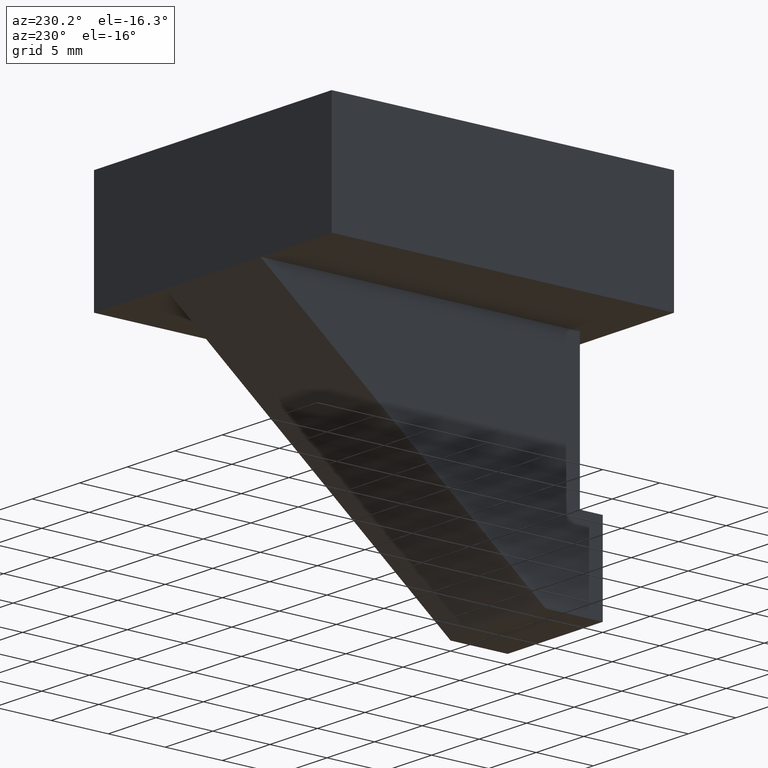
[diagram: clean part render]
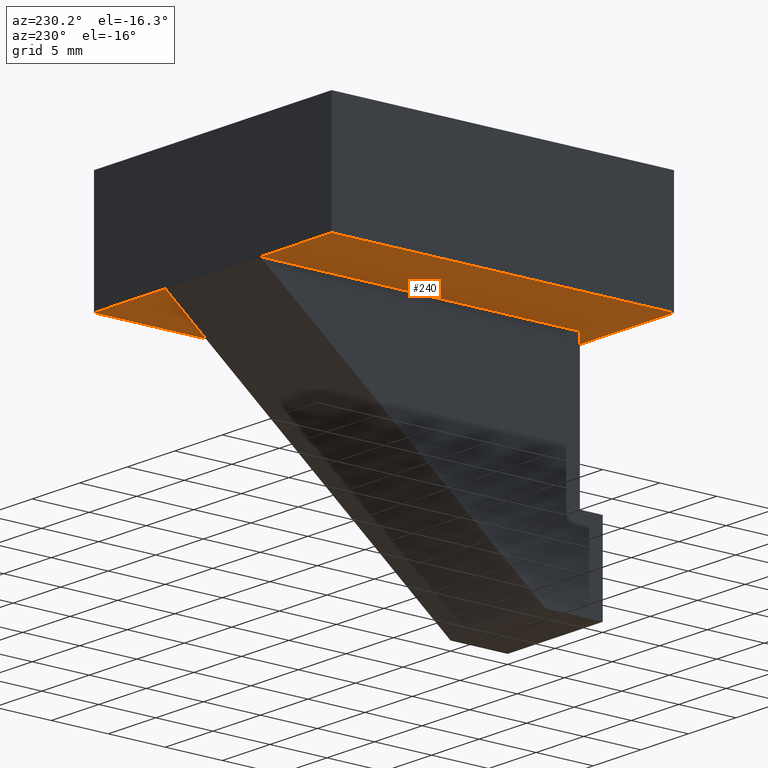
[diagram: same view with one face highlighted and labeled with its STEP entity id]
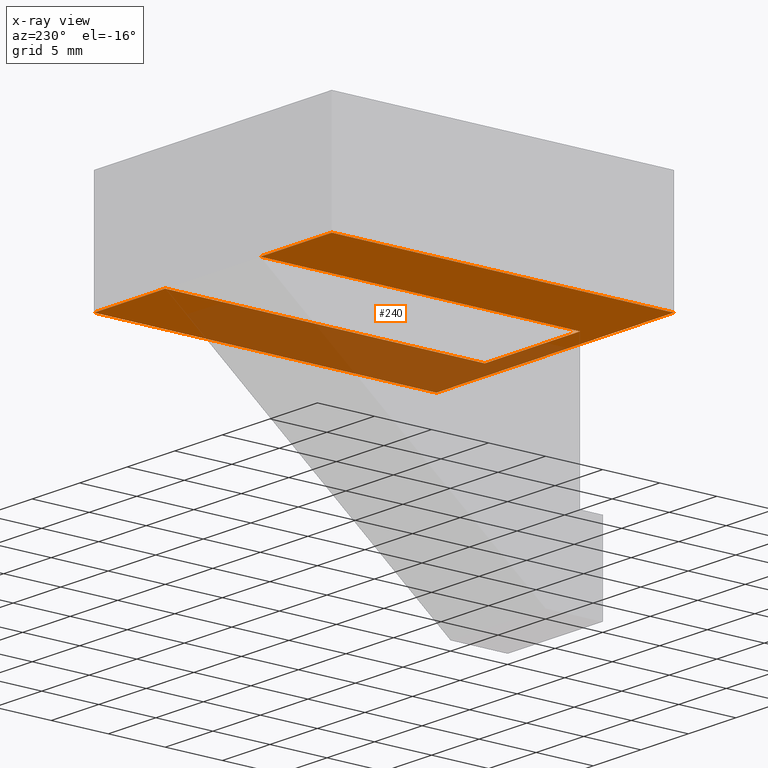
[diagram: x-ray of the same camera — body ghosted, the highlighted face saturated]
A machine part, auxiliary view. The second image highlights one B-rep face of the part: STEP entity #240.
The next image is the same camera in x-ray: the body ghosted, the highlighted face saturated — about 41% of this face is hidden behind the body in this view.
In plain terms, the highlighted planar face has unit normal (0, 0, -1).
Its self-contained STEP definition (entity closure, byte-faithful):
#26=FACE_OUTER_BOUND('',#39,.T.);
#39=EDGE_LOOP('',(#204,#205,#206,#207,#208,#209,#210,#211));
#44=LINE('',#347,#75);
#51=LINE('',#360,#82);
#58=LINE('',#374,#89);
#59=LINE('',#378,#90);
#63=LINE('',#386,#94);
#69=LINE('',#397,#100);
#70=LINE('',#398,#101);
#71=LINE('',#400,#102);
#75=VECTOR('',#285,10.);
#82=VECTOR('',#296,10.);
#89=VECTOR('',#311,10.);
#90=VECTOR('',#314,10.);
#94=VECTOR('',#320,10.);
#100=VECTOR('',#330,10.);
#101=VECTOR('',#331,10.);
#102=VECTOR('',#334,10.);
#106=VERTEX_POINT('',#344);
#107=VERTEX_POINT('',#346);
#111=VERTEX_POINT('',#358);
#112=VERTEX_POINT('',#362);
#115=VERTEX_POINT('',#376);
#116=VERTEX_POINT('',#377);
#119=VERTEX_POINT('',#385);
#122=VERTEX_POINT('',#395);
#126=EDGE_CURVE('',#107,#106,#44,.T.);
#133=EDGE_CURVE('',#106,#111,#51,.T.);
#140=EDGE_CURVE('',#111,#112,#58,.T.);
#141=EDGE_CURVE('',#115,#116,#59,.T.);
#145=EDGE_CURVE('',#119,#116,#63,.T.);
#151=EDGE_CURVE('',#112,#122,#69,.T.);
#152=EDGE_CURVE('',#115,#107,#70,.T.);
#153=EDGE_CURVE('',#119,#122,#71,.T.);
#204=ORIENTED_EDGE('',*,*,#140,.T.);
#205=ORIENTED_EDGE('',*,*,#151,.T.);
#206=ORIENTED_EDGE('',*,*,#153,.F.);
#207=ORIENTED_EDGE('',*,*,#145,.T.);
#208=ORIENTED_EDGE('',*,*,#141,.F.);
#209=ORIENTED_EDGE('',*,*,#152,.T.);
#210=ORIENTED_EDGE('',*,*,#126,.T.);
#211=ORIENTED_EDGE('',*,*,#133,.T.);
#227=PLANE('',#276);
#240=ADVANCED_FACE('',(#26),#227,.T.);
#276=AXIS2_PLACEMENT_3D('',#399,#332,#333);
#285=DIRECTION('',(0.,-1.,0.));
#296=DIRECTION('',(1.,0.,0.));
#311=DIRECTION('',(0.,1.,0.));
#314=DIRECTION('',(0.,-1.,0.));
#320=DIRECTION('',(-1.,0.,0.));
#330=DIRECTION('',(1.,0.,0.));
#331=DIRECTION('',(1.,0.,0.));
#332=DIRECTION('center_axis',(0.,0.,-1.));
#333=DIRECTION('ref_axis',(0.,1.,0.));
#334=DIRECTION('',(0.,1.,0.));
#344=CARTESIAN_POINT('',(-5.,2.,0.));
#346=CARTESIAN_POINT('',(-5.,30.,0.));
#347=CARTESIAN_POINT('',(-5.,7.5,0.));
#358=CARTESIAN_POINT('',(5.,2.,0.));
#360=CARTESIAN_POINT('',(0.,2.,0.));
#362=CARTESIAN_POINT('',(5.,30.,0.));
#374=CARTESIAN_POINT('',(5.,7.5,0.));
#376=CARTESIAN_POINT('',(-12.5,30.,0.));
#377=CARTESIAN_POINT('',(-12.5,0.,0.));
#378=CARTESIAN_POINT('',(-12.5,0.,0.));
#385=CARTESIAN_POINT('',(12.5,0.,0.));
#386=CARTESIAN_POINT('',(0.,0.,0.));
#395=CARTESIAN_POINT('',(12.5,30.,0.));
#397=CARTESIAN_POINT('',(0.,30.,0.));
#398=CARTESIAN_POINT('',(0.,30.,0.));
#399=CARTESIAN_POINT('Origin',(0.,0.,0.));
#400=CARTESIAN_POINT('',(12.5,0.,0.));